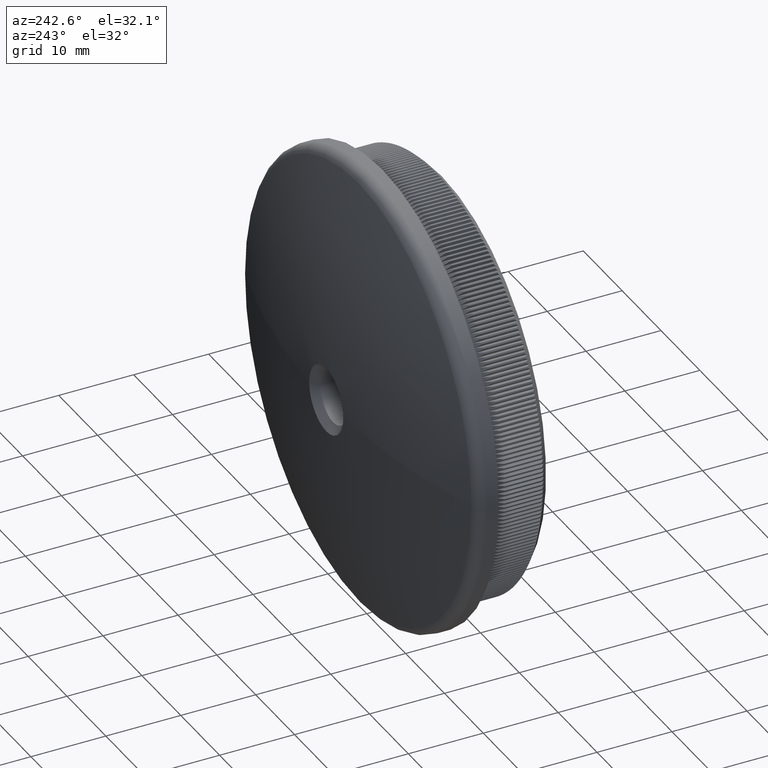
[diagram: clean part render]
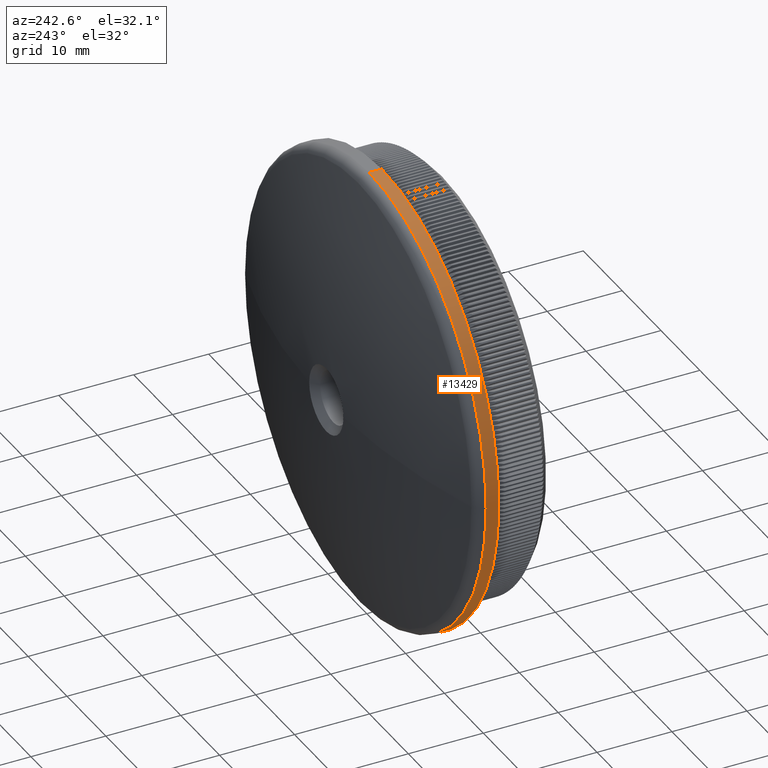
[diagram: same view with one face highlighted and labeled with its STEP entity id]
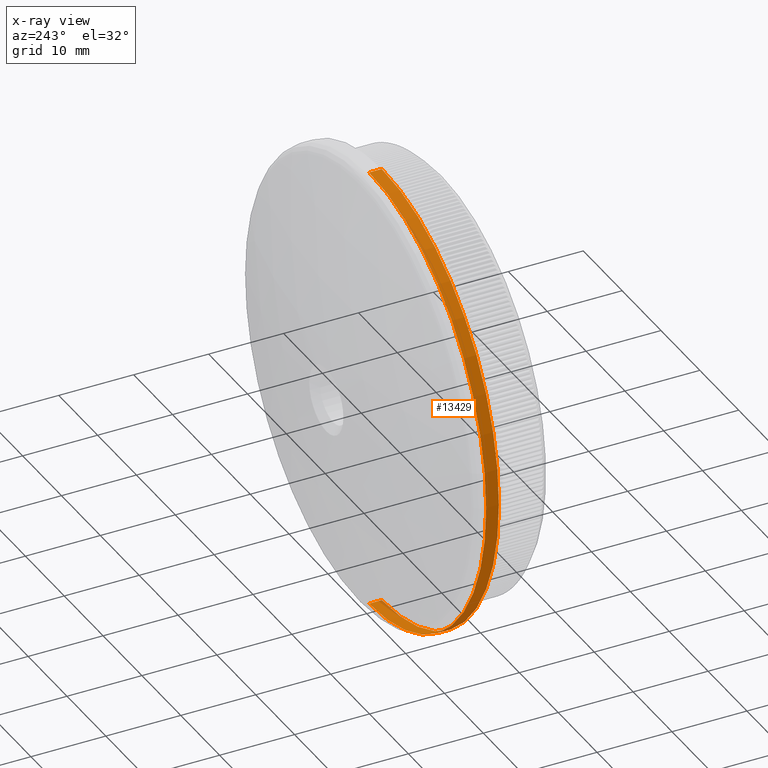
[diagram: x-ray of the same camera — body ghosted, the highlighted face saturated]
A machine part, auxiliary view. The second image highlights one B-rep face of the part: STEP entity #13429.
The next image is the same camera in x-ray: the body ghosted, the highlighted face saturated — about 1% of this face is hidden behind the body in this view.
In plain terms, the highlighted cylindrical surface (partial cylindrical patch) has radius 30.15 mm, axis along (-0, -1, -0).
Its self-contained STEP definition (entity closure, byte-faithful):
#1463 = CARTESIAN_POINT ( 'NONE',  ( 3.692310099429270400E-015, 8.000000000000000000, 30.14999999999999900 ) ) ;
#3095 = VERTEX_POINT ( 'NONE', #10664 ) ;
#4278 = ORIENTED_EDGE ( 'NONE', *, *, #15789, .T. ) ;
#4844 = CARTESIAN_POINT ( 'NONE',  ( 0.0000000000000000000, 8.000000000000000000, 0.0000000000000000000 ) ) ;
#5177 = VERTEX_POINT ( 'NONE', #17852 ) ;
#5397 = DIRECTION ( 'NONE',  ( -0.0000000000000000000, -1.000000000000000000, -0.0000000000000000000 ) ) ;
#7356 = EDGE_CURVE ( 'NONE', #18710, #5177, #17172, .T. ) ;
#8491 = ORIENTED_EDGE ( 'NONE', *, *, #7356, .T. ) ;
#8829 = CARTESIAN_POINT ( 'NONE',  ( 0.0000000000000000000, 0.0000000000000000000, 0.0000000000000000000 ) ) ;
#9824 = DIRECTION ( 'NONE',  ( 0.0000000000000000000, 0.0000000000000000000, -1.000000000000000000 ) ) ;
#10664 = CARTESIAN_POINT ( 'NONE',  ( 0.0000000000000000000, 8.000000000000000000, -30.14999999999999900 ) ) ;
#11349 = CYLINDRICAL_SURFACE ( 'NONE', #12914, 30.14999999999999900 ) ;
#12914 = AXIS2_PLACEMENT_3D ( 'NONE', #8829, #26044, #26509 ) ;
#13429 = ADVANCED_FACE ( 'NONE', ( #36669 ), #11349, .T. ) ;
#15789 = EDGE_CURVE ( 'NONE', #5177, #3095, #18906, .T. ) ;
#16512 = EDGE_CURVE ( 'NONE', #18710, #32266, #25395, .T. ) ;
#17172 = CIRCLE ( 'NONE', #41180, 30.14999999999999900 ) ;
#17852 = CARTESIAN_POINT ( 'NONE',  ( 0.0000000000000000000, 9.698157620612200000, -30.14999999999999900 ) ) ;
#18710 = VERTEX_POINT ( 'NONE', #25180 ) ;
#18906 = LINE ( 'NONE', #26503, #38729 ) ;
#20267 = AXIS2_PLACEMENT_3D ( 'NONE', #4844, #29635, #25635 ) ;
#21392 = ORIENTED_EDGE ( 'NONE', *, *, #16512, .F. ) ;
#24270 = CARTESIAN_POINT ( 'NONE',  ( 0.0000000000000000000, 9.698157620612200000, 0.0000000000000000000 ) ) ;
#24279 = CARTESIAN_POINT ( 'NONE',  ( 3.692310099429270400E-015, 0.0000000000000000000, 30.14999999999999900 ) ) ;
#25180 = CARTESIAN_POINT ( 'NONE',  ( 3.692310099429270400E-015, 9.698157620612200000, 30.14999999999999900 ) ) ;
#25395 = LINE ( 'NONE', #24279, #33673 ) ;
#25635 = DIRECTION ( 'NONE',  ( 0.0000000000000000000, 0.0000000000000000000, -1.000000000000000000 ) ) ;
#25985 = ORIENTED_EDGE ( 'NONE', *, *, #44425, .F. ) ;
#26044 = DIRECTION ( 'NONE',  ( -0.0000000000000000000, -1.000000000000000000, -0.0000000000000000000 ) ) ;
#26503 = CARTESIAN_POINT ( 'NONE',  ( 0.0000000000000000000, 0.0000000000000000000, -30.14999999999999900 ) ) ;
#26509 = DIRECTION ( 'NONE',  ( 0.0000000000000000000, 0.0000000000000000000, -1.000000000000000000 ) ) ;
#28334 = EDGE_LOOP ( 'NONE', ( #21392, #8491, #4278, #25985 ) ) ;
#29635 = DIRECTION ( 'NONE',  ( -0.0000000000000000000, -1.000000000000000000, -0.0000000000000000000 ) ) ;
#32266 = VERTEX_POINT ( 'NONE', #1463 ) ;
#33673 = VECTOR ( 'NONE', #35044, 1000.000000000000000 ) ;
#35044 = DIRECTION ( 'NONE',  ( -0.0000000000000000000, -1.000000000000000000, -0.0000000000000000000 ) ) ;
#36669 = FACE_OUTER_BOUND ( 'NONE', #28334, .T. ) ;
#37378 = CIRCLE ( 'NONE', #20267, 30.14999999999999900 ) ;
#38729 = VECTOR ( 'NONE', #5397, 1000.000000000000000 ) ;
#41180 = AXIS2_PLACEMENT_3D ( 'NONE', #24270, #44732, #9824 ) ;
#44425 = EDGE_CURVE ( 'NONE', #32266, #3095, #37378, .T. ) ;
#44732 = DIRECTION ( 'NONE',  ( -0.0000000000000000000, -1.000000000000000000, -0.0000000000000000000 ) ) ;